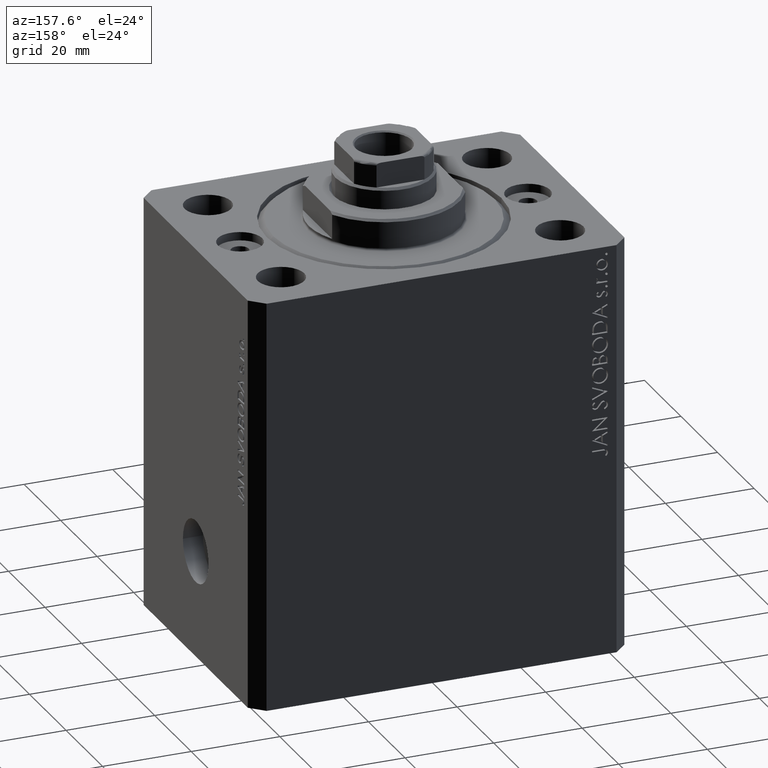
[diagram: clean part render]
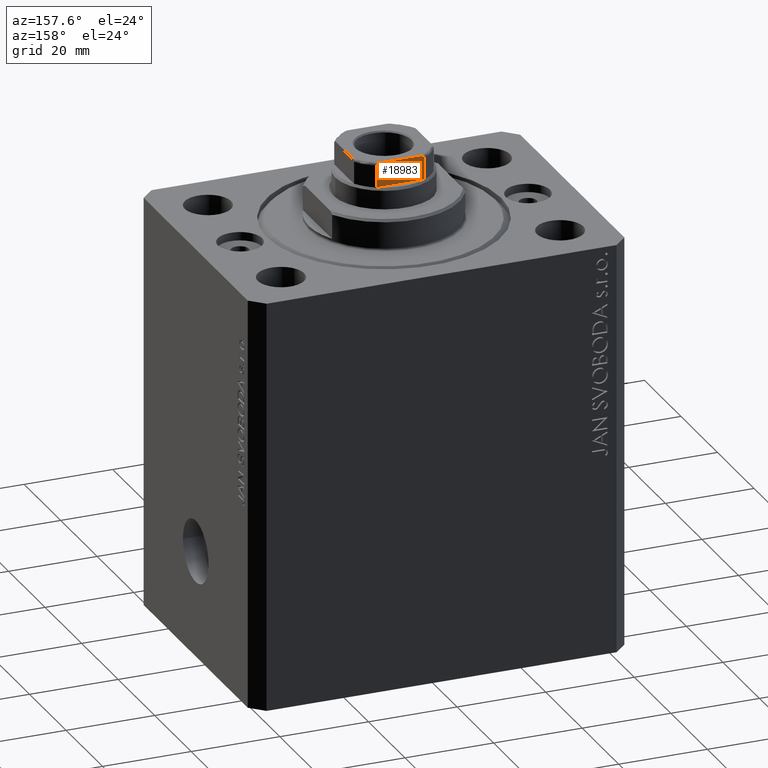
[diagram: same view with one face highlighted and labeled with its STEP entity id]
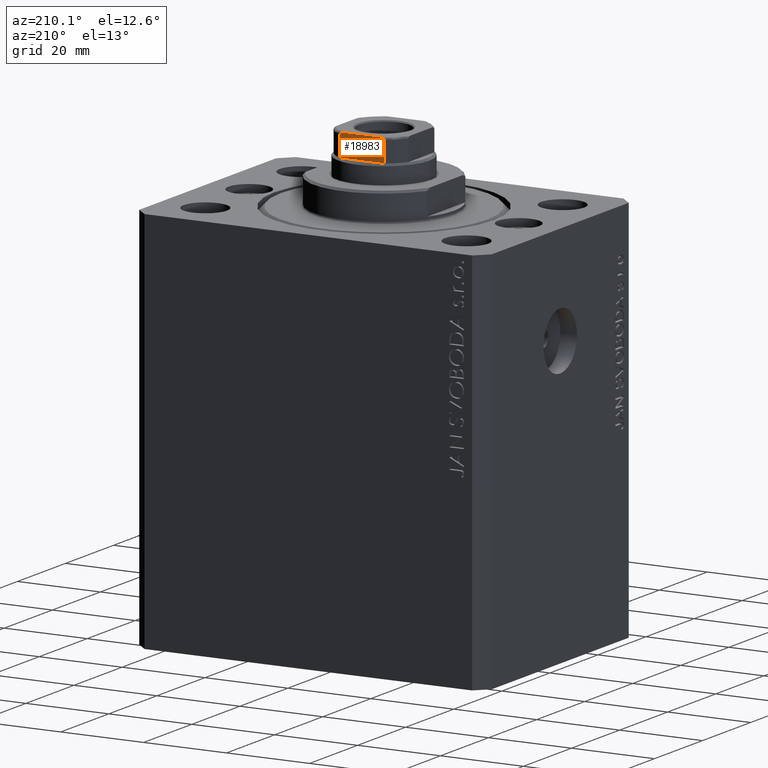
[diagram: same view with one face highlighted and labeled with its STEP entity id]
A machine part, auxiliary view. The second image highlights one B-rep face of the part: STEP entity #18983.
A second angle (auxiliary view) of the same face is appended — the face is thin or edge-on in the first view.
In plain terms, the highlighted planar face has unit normal (0, -1, 0).
Its self-contained STEP definition (entity closure, byte-faithful):
#679 = CARTESIAN_POINT ( 'NONE',  ( -4.358898943540678417, 8.999999999999998224, 98.60000000000000853 ) ) ;
#1759 = VERTEX_POINT ( 'NONE', #40832 ) ;
#3594 = AXIS2_PLACEMENT_3D ( 'NONE', #32218, #11750, #22339 ) ;
#3710 = CARTESIAN_POINT ( 'NONE',  ( -9.000000000000000000, 8.999999999999998224, 98.60000000000000853 ) ) ;
#4535 = DIRECTION ( 'NONE',  ( -0.000000000000000000, -0.000000000000000000, 1.000000000000000000 ) ) ;
#6770 = CARTESIAN_POINT ( 'NONE',  ( 4.569272810556672226, 8.999999999999998224, 98.59999999999999432 ) ) ;
#6856 = EDGE_CURVE ( 'NONE', #19466, #21880, #31057, .T. ) ;
#6954 = EDGE_CURVE ( 'NONE', #21147, #19466, #44087, .T. ) ;
#7032 = CARTESIAN_POINT ( 'NONE',  ( -5.077896145217223989, 8.999999999999996447, 98.47730167760668962 ) ) ;
#7035 = VECTOR ( 'NONE', #26782, 1000.000000000000000 ) ;
#7210 = CARTESIAN_POINT ( 'NONE',  ( 5.074490744525495423, 8.999999999999998224, 98.47872007843325548 ) ) ;
#7472 = CARTESIAN_POINT ( 'NONE',  ( -5.298186678102076108, 8.999999999999998224, 98.33387812150049001 ) ) ;
#10187 = CARTESIAN_POINT ( 'NONE',  ( -5.174818616237109481, 9.000000000000000000, 98.43252188465332608 ) ) ;
#10359 = ORIENTED_EDGE ( 'NONE', *, *, #6856, .T. ) ;
#10608 = CARTESIAN_POINT ( 'NONE',  ( 5.408326913195989682, 8.999999999999998224, 98.09999999999998010 ) ) ;
#10782 = ORIENTED_EDGE ( 'NONE', *, *, #6954, .T. ) ;
#11717 = B_SPLINE_CURVE_WITH_KNOTS ( 'NONE', 3,
 ( #37564, #6770, #24299, #7210, #13753, #41587, #20487, #30828, #38879, #22033 ),
 .UNSPECIFIED., .F., .F.,
 ( 4, 2, 2, 2, 4 ),
 ( 8.673617379884035472E-19, 0.0006221106941441160391, 0.0009331660412161747091, 0.001088693714752204207, 0.001244221388288233596 ),
 .UNSPECIFIED. ) ;
#11750 = DIRECTION ( 'NONE',  ( 0.000000000000000000, -1.000000000000000000, 0.000000000000000000 ) ) ;
#11808 = EDGE_LOOP ( 'NONE', ( #38133, #25169, #28898, #38613, #10782, #10359 ) ) ;
#13753 = CARTESIAN_POINT ( 'NONE',  ( 5.173732970196589953, 9.000000000000000000, 98.43318086437986381 ) ) ;
#15328 = LINE ( 'NONE', #38923, #29287 ) ;
#15494 = VECTOR ( 'NONE', #23506, 1000.000000000000000 ) ;
#16034 = CARTESIAN_POINT ( 'NONE',  ( 4.358898943540677529, 8.999999999999998224, 98.60000000000000853 ) ) ;
#17963 = DIRECTION ( 'NONE',  ( -1.000000000000000000, -0.000000000000000000, -0.000000000000000000 ) ) ;
#18983 = ADVANCED_FACE ( 'NONE', ( #29061 ), #43222, .F. ) ;
#19466 = VERTEX_POINT ( 'NONE', #35409 ) ;
#20487 = CARTESIAN_POINT ( 'NONE',  ( 5.335288102212765615, 8.999999999999998224, 98.29569054027621178 ) ) ;
#20756 = CARTESIAN_POINT ( 'NONE',  ( -4.778533838065912143, 9.000000000000000000, 98.57782914764696613 ) ) ;
#20912 = CARTESIAN_POINT ( 'NONE',  ( -9.000000000000000000, 8.999999999999998224, 93.10000000000000853 ) ) ;
#20980 = CARTESIAN_POINT ( 'NONE',  ( -4.358898943540678417, 8.999999999999998224, 98.60000000000000853 ) ) ;
#21067 = EDGE_CURVE ( 'NONE', #1759, #21147, #31025, .T. ) ;
#21147 = VERTEX_POINT ( 'NONE', #25604 ) ;
#21880 = VERTEX_POINT ( 'NONE', #679 ) ;
#21931 = EDGE_CURVE ( 'NONE', #26738, #30189, #11717, .T. ) ;
#22033 = CARTESIAN_POINT ( 'NONE',  ( 5.408326913195989682, 8.999999999999998224, 98.09999999999998010 ) ) ;
#22339 = DIRECTION ( 'NONE',  ( 0.000000000000000000, -0.000000000000000000, -1.000000000000000000 ) ) ;
#23506 = DIRECTION ( 'NONE',  ( -1.000000000000000000, -0.000000000000000000, -0.000000000000000000 ) ) ;
#24299 = CARTESIAN_POINT ( 'NONE',  ( 4.775913644518309908, 8.999999999999998224, 98.57814607430833576 ) ) ;
#24565 = CARTESIAN_POINT ( 'NONE',  ( -5.408326913195988794, 8.999999999999998224, 98.09999999999998010 ) ) ;
#25169 = ORIENTED_EDGE ( 'NONE', *, *, #21931, .T. ) ;
#25604 = CARTESIAN_POINT ( 'NONE',  ( -5.408326913195991459, 8.999999999999998224, 93.10000000000003695 ) ) ;
#26738 = VERTEX_POINT ( 'NONE', #16034 ) ;
#26782 = DIRECTION ( 'NONE',  ( -0.000000000000000000, -0.000000000000000000, 1.000000000000000000 ) ) ;
#27281 = CARTESIAN_POINT ( 'NONE',  ( -5.408326913195987906, 8.999999999999998224, 98.15357207273348195 ) ) ;
#28898 = ORIENTED_EDGE ( 'NONE', *, *, #34053, .F. ) ;
#29061 = FACE_OUTER_BOUND ( 'NONE', #11808, .T. ) ;
#29287 = VECTOR ( 'NONE', #4535, 1000.000000000000000 ) ;
#29806 = EDGE_CURVE ( 'NONE', #26738, #21880, #34503, .T. ) ;
#30189 = VERTEX_POINT ( 'NONE', #10608 ) ;
#30828 = CARTESIAN_POINT ( 'NONE',  ( 5.390945448132530515, 8.999999999999996447, 98.20548165389702433 ) ) ;
#31025 = LINE ( 'NONE', #20912, #35336 ) ;
#31057 = B_SPLINE_CURVE_WITH_KNOTS ( 'NONE', 3,
 ( #24565, #27281, #40983, #37823, #7472, #10187, #7032, #20756, #37605, #20980 ),
 .UNSPECIFIED., .F., .F.,
 ( 4, 2, 2, 2, 4 ),
 ( 2.823925224926892107E-17, 0.0001582447020888261345, 0.0003164894041776240255, 0.0006329788083552457742, 0.001265957616710502390 ),
 .UNSPECIFIED. ) ;
#32218 = CARTESIAN_POINT ( 'NONE',  ( -9.000000000000000000, 8.999999999999998224, 98.60000000000000853 ) ) ;
#33090 = CARTESIAN_POINT ( 'NONE',  ( -5.408326913195988794, 8.999999999999998224, -0.001000000000001000089 ) ) ;
#34053 = EDGE_CURVE ( 'NONE', #1759, #30189, #15328, .T. ) ;
#34503 = LINE ( 'NONE', #3710, #15494 ) ;
#35336 = VECTOR ( 'NONE', #17963, 1000.000000000000000 ) ;
#35409 = CARTESIAN_POINT ( 'NONE',  ( -5.408326913195988794, 8.999999999999998224, 98.09999999999998010 ) ) ;
#37564 = CARTESIAN_POINT ( 'NONE',  ( 4.358898943540677529, 8.999999999999998224, 98.60000000000000853 ) ) ;
#37605 = CARTESIAN_POINT ( 'NONE',  ( -4.569278586016987553, 8.999999999999996447, 98.59999999999999432 ) ) ;
#37823 = CARTESIAN_POINT ( 'NONE',  ( -5.335664150027712438, 8.999999999999998224, 98.29518433800130595 ) ) ;
#38133 = ORIENTED_EDGE ( 'NONE', *, *, #29806, .F. ) ;
#38613 = ORIENTED_EDGE ( 'NONE', *, *, #21067, .T. ) ;
#38879 = CARTESIAN_POINT ( 'NONE',  ( 5.408326913195987906, 9.000000000000000000, 98.15374346731883293 ) ) ;
#38923 = CARTESIAN_POINT ( 'NONE',  ( 5.408326913195989682, 8.999999999999998224, -0.001000000000001000089 ) ) ;
#40832 = CARTESIAN_POINT ( 'NONE',  ( 5.408326913195989682, 8.999999999999998224, 93.10000000000003695 ) ) ;
#40983 = CARTESIAN_POINT ( 'NONE',  ( -5.390954572107318654, 8.999999999999998224, 98.20536285214002703 ) ) ;
#41587 = CARTESIAN_POINT ( 'NONE',  ( 5.297634495023415546, 9.000000000000000000, 98.33442280527800960 ) ) ;
#43222 = PLANE ( 'NONE',  #3594 ) ;
#44087 = LINE ( 'NONE', #33090, #7035 ) ;